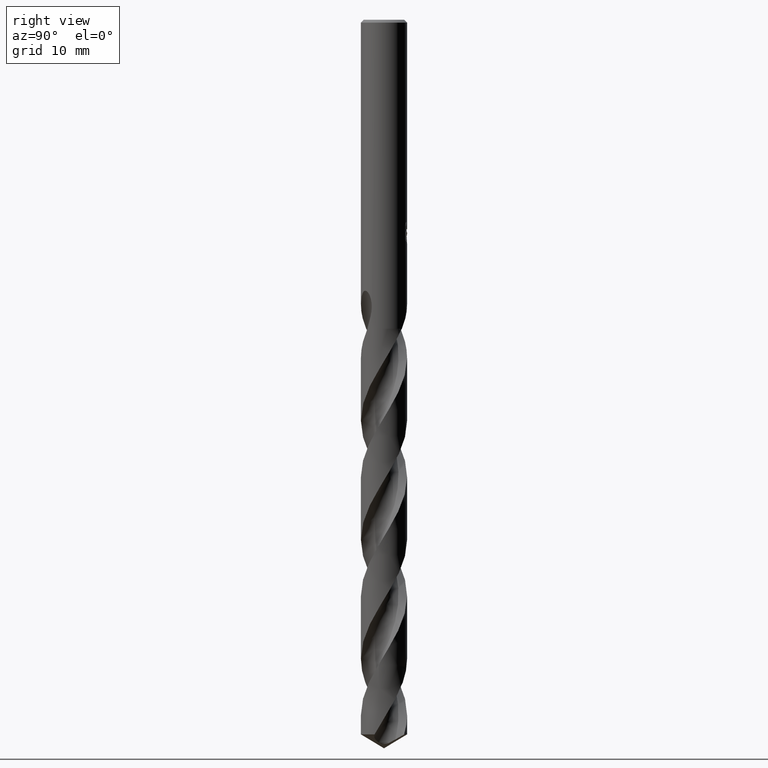
[diagram: clean part render]
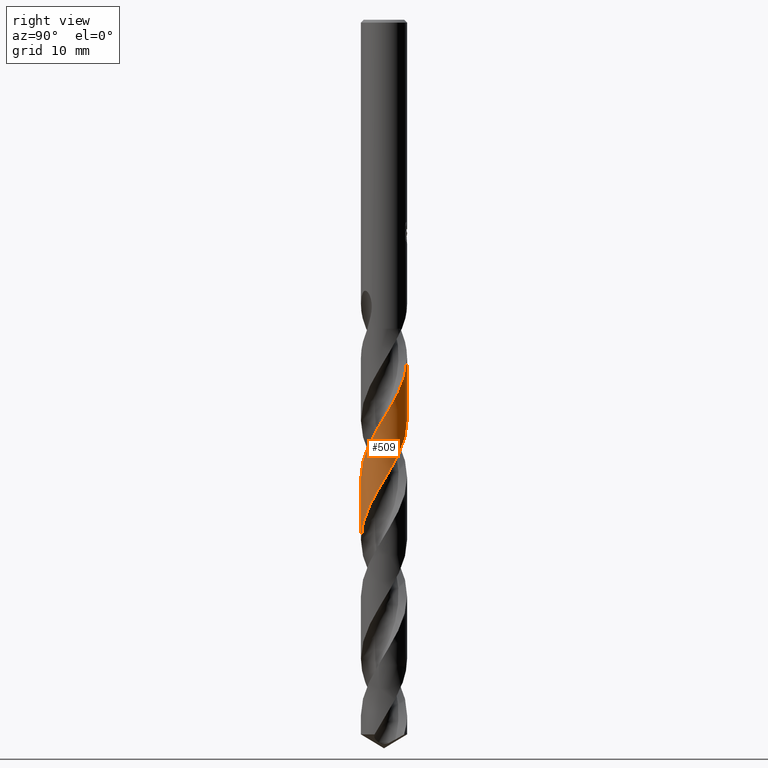
[diagram: same view with one face highlighted and labeled with its STEP entity id]
A machine part, right view. The second image highlights one B-rep face of the part: STEP entity #509.
In plain terms, the highlighted conical surface has half-angle 0 deg.
Its self-contained STEP definition (entity closure, byte-faithful):
#327=EDGE_CURVE('',#559,#593,#831,.T.);
#431=VERTEX_POINT('',#944);
#505=EDGE_CURVE('',#431,#593,#1026,.T.);
#509=ADVANCED_FACE('',(#1030),#1031,.T.);
#559=VERTEX_POINT('',#1083);
#593=VERTEX_POINT('',#1122);
#651=VERTEX_POINT('',#1185);
#693=EDGE_CURVE('',#431,#651,#1230,.T.);
#707=EDGE_CURVE('',#559,#651,#1244,.T.);
#831=LINE('',#1780,#1781);
#944=CARTESIAN_POINT('',(-2.91260331241914E-015,-3.19995201855956,-72.0930376135039));
#1026=B_SPLINE_CURVE_WITH_KNOTS('',3,(#5105,#5106,#5107,#5108,#5109,#5110,#5111,#5112,#5113,#5114,#5115,#5116,#5117,#5118,#5119,#5120,#5121,#5122,#5123,#5124,#5125,#5126,#5127,#5128,#5129,#5130,#5131,#5132,#5133,#5134,#5135,#5136,#5137,#5138,#5139,#5140,#5141,#5142,#5143,#5144,#5145,#5146,#5147,#5148,#5149,#5150,#5151,#5152,#5153,#5154,#5155,#5156,#5157,#5158,#5159,#5160,#5161,#5162,#5163,#5164,#5165,#5166,#5167,#5168,#5169,#5170,#5171,#5172,#5173,#5174,#5175,#5176,#5177,#5178,#5179,#5180,#5181,#5182,#5183,#5184,#5185,#5186,#5187,#5188,#5189,#5190,#5191,#5192,#5193,#5194,#5195,#5196,#5197,#5198,#5199,#5200,#5201,#5202,#5203,#5204,#5205,#5206,#5207,#5208,#5209,#5210,#5211,#5212,#5213,#5214,#5215,#5216,#5217,#5218,#5219,#5220,#5221,#5222,#5223,#5224,#5225,#5226,#5227,#5228,#5229,#5230,#5231,#5232,#5233,#5234,#5235,#5236,#5237,#5238,#5239,#5240,#5241,#5242,#5243,#5244,#5245,#5246,#5247,#5248,#5249,#5250,#5251,#5252,#5253,#5254,#5255,#5256,#5257,#5258,#5259,#5260),.UNSPECIFIED.,.F.,.F.,(4,2,2,2,2,2,2,2,2,2,2,2,2,2,2,2,2,2,2,2,2,2,2,2,2,2,2,2,2,2,2,2,2,2,2,2,2,2,2,2,2,2,2,2,2,2,2,2,2,2,2,2,2,2,2,2,2,2,2,2,2,2,2,2,2,2,2,2,2,2,2,2,2,2,2,2,2,4),(0.0,1.02158665361469,1.55397234841341,2.60050687630272,3.65601461697137,4.73858149125776,5.54847981453572,6.04845096128103,6.41190592570077,7.45010588805567,7.98306688293103,9.00427599153548,10.0600706424574,11.1039612214443,12.1588950030397,13.2055168937303,14.2597261742195,14.5234842018148,15.311536275016,16.3641253550588,17.4143734928957,18.466578462588,19.4904971470433,20.5416091330584,21.5375570668485,22.4791178138284,23.012354739379,23.9108937703838,24.9668214320715,26.0129843719644,27.0682022960258,28.0254426523451,29.0692143371415,30.0095182671001,31.1370575421711,31.6402103102861,32.007059955504,33.0461801399819,33.58118045698,34.6082836668661,35.6680614243557,36.7161729361432,37.775147133723,38.8258748533602,39.8841227696139,40.1488968662197,40.9414155407813,41.9980315734894,43.0523364063599,44.1085839997825,45.1362079808316,46.1913765983978,47.1948051866324,48.1469755317245,48.6710526127934,49.5720948274991,50.6319948084963,51.6823485867987,52.7415819907333,53.794404581413,54.8529754110242,55.9085777434407,56.9671289096991,57.9442784745646,58.8970703187746,60.6037469398591,61.2335798558099,62.1281818140837,62.5741382352881,64.5223596962156,65.2618271848891,65.5905814678174,65.9308106373669,66.1854070846266,66.4568762147271,66.88146465761,68.1205324374473,69.9710411724681),.UNSPECIFIED.);
#1030=FACE_OUTER_BOUND('',#5265,.T.);
#1031=CONICAL_SURFACE('',#5266,3.19995,1.77813036857339E-006);
#1083=CARTESIAN_POINT('',(8.5023499260595E-013,3.19990720522995,-46.8905381779976));
#1122=CARTESIAN_POINT('',(3.9328094472779E-014,3.19992267071849,-55.5881504597108));
#1185=CARTESIAN_POINT('',(2.19563914921632E-014,-3.19993655201892,-63.3948336357782));
#1230=LINE('',#7078,#7079);
#1244=B_SPLINE_CURVE_WITH_KNOTS('',3,(#7254,#7255,#7256,#7257,#7258,#7259,#7260,#7261,#7262,#7263,#7264,#7265,#7266,#7267,#7268,#7269,#7270,#7271,#7272,#7273,#7274,#7275,#7276,#7277,#7278,#7279,#7280,#7281,#7282,#7283,#7284,#7285,#7286,#7287,#7288,#7289,#7290,#7291,#7292,#7293,#7294,#7295,#7296,#7297,#7298,#7299,#7300,#7301,#7302,#7303,#7304,#7305,#7306,#7307,#7308,#7309,#7310,#7311,#7312,#7313,#7314,#7315,#7316,#7317,#7318,#7319,#7320,#7321,#7322,#7323,#7324,#7325,#7326,#7327,#7328,#7329,#7330,#7331,#7332,#7333,#7334,#7335,#7336,#7337,#7338,#7339,#7340,#7341,#7342,#7343,#7344,#7345,#7346,#7347,#7348,#7349,#7350,#7351,#7352,#7353,#7354,#7355,#7356,#7357,#7358,#7359,#7360,#7361,#7362,#7363,#7364,#7365,#7366,#7367,#7368,#7369,#7370,#7371,#7372,#7373,#7374,#7375,#7376,#7377,#7378,#7379,#7380,#7381,#7382,#7383,#7384,#7385,#7386,#7387,#7388,#7389,#7390,#7391,#7392,#7393,#7394,#7395,#7396,#7397,#7398,#7399,#7400,#7401,#7402,#7403,#7404,#7405,#7406,#7407,#7408,#7409,#7410,#7411,#7412,#7413,#7414,#7415,#7416,#7417,#7418,#7419,#7420,#7421,#7422,#7423,#7424,#7425,#7426,#7427,#7428,#7429,#7430,#7431,#7432,#7433,#7434,#7435),.UNSPECIFIED.,.F.,.F.,(4,2,2,2,2,2,2,2,2,2,2,2,2,2,2,2,2,2,2,2,2,2,2,2,2,2,2,2,2,2,2,2,2,2,2,2,2,2,2,2,2,2,2,2,2,2,2,2,2,2,2,2,2,2,2,2,2,2,2,2,2,2,2,2,2,2,2,2,2,2,2,2,2,2,2,2,2,2,2,2,2,2,2,2,2,2,2,2,2,2,4),(0.0,0.162508176744681,0.262962248416438,0.278276469323276,0.287289466920164,0.292621480535898,0.296837173648333,0.300380379750316,0.303383865669479,0.305947729503301,0.308149081224268,0.310048414192678,0.696918608611974,0.78779981944965,0.837480298149021,0.879145641300166,0.928477887189043,1.01780122871589,1.13766686543505,1.62962187724731,1.93806701981142,2.56079531830886,4.15599006233597,4.19252409294814,5.35347810074523,5.87026171575325,6.45284894057769,7.46448625552191,7.98071630226949,8.54059894214104,9.5350068543981,10.0948138088861,10.6658316675442,11.6478249541244,12.2068368708415,12.7414318755416,13.7261706492854,14.2850138360151,14.8162976749302,15.8106364236795,16.3691089958169,16.8909318889398,17.8898480607402,18.4481057168711,18.9651681384164,19.9716492084033,21.0837199441439,22.2799810874673,23.0554393339788,24.1016009484798,25.2141367341614,26.3954108050032,27.2013717364557,28.2549280231771,29.3658853288817,30.5727389850749,31.3258673815321,32.3651440061767,32.9231251013335,33.4430036354592,34.4456853313956,35.5574689486289,36.7389238414698,37.5430754385049,38.5996715785268,39.7095538346217,40.9243610645761,41.6610006979406,42.6951658263414,43.2530005256307,43.7765658404705,44.7704625843041,45.3281268902806,45.8479937686294,46.8511414741198,47.9621551697774,49.150622529171,49.9382123168745,50.987143614478,52.0975309353969,53.2871424706502,54.0706541042447,55.1157819101185,56.226526998923,57.416417579003,58.2033918689481,59.2466805763635,60.4370707265046,61.3262947411645,62.6707243668066,64.0145304689769),.UNSPECIFIED.);
#1780=CARTESIAN_POINT('',(-3.91693754514266E-016,3.19995,-70.9578230095559));
#1781=VECTOR('',#8818,1.0);
#5105=CARTESIAN_POINT('',(2.91667535114104,-1.31643643828571,-99.0772460191119));
#5106=CARTESIAN_POINT('',(2.98922704131377,-1.15569082401131,-98.7859437346212));
#5107=CARTESIAN_POINT('',(3.04855483493951,-0.988812961967616,-98.4963089093706));
#5108=CARTESIAN_POINT('',(3.11745223132555,-0.72802449591417,-98.0542165220331));
#5109=CARTESIAN_POINT('',(3.13716530359107,-0.637735069751219,-97.902963461199));
#5110=CARTESIAN_POINT('',(3.18395318351043,-0.367923340019046,-97.4536418267543));
#5111=CARTESIAN_POINT('',(3.19969355465878,-0.186847435492377,-97.1547598113868));
#5112=CARTESIAN_POINT('',(3.20029244712111,0.177876663463347,-96.5565825585273));
#5113=CARTESIAN_POINT('',(3.18486935931106,0.360663586068769,-96.2577695289558));
#5114=CARTESIAN_POINT('',(3.12217720733975,0.726094635875155,-95.6492941359391));
#5115=CARTESIAN_POINT('',(3.07425249451457,0.907850582007919,-95.3398832103378));
#5116=CARTESIAN_POINT('',(2.96299487775976,1.2166961680246,-94.8013000936051));
#5117=CARTESIAN_POINT('',(2.90671195483287,1.34563831223136,-94.5715772331708));
#5118=CARTESIAN_POINT('',(2.80221523396485,1.54760063555839,-94.1989384506214));
#5119=CARTESIAN_POINT('',(2.75926324527817,1.62293009432958,-94.0568198833268));
#5120=CARTESIAN_POINT('',(2.68001898424042,1.74968511275061,-93.8109405457506));
#5121=CARTESIAN_POINT('',(2.64515145563124,1.80195942242564,-93.7072753937988));
#5122=CARTESIAN_POINT('',(2.50487449821263,1.9994318908679,-93.308446224072));
#5123=CARTESIAN_POINT('',(2.38868019861751,2.13695188715435,-93.0146351155079));
#5124=CARTESIAN_POINT('',(2.19586113971581,2.32952030215026,-92.5682839594626));
#5125=CARTESIAN_POINT('',(2.12770964325873,2.39192220565961,-92.4170465268318));
#5126=CARTESIAN_POINT('',(1.92157123643604,2.56490723753893,-91.9752447740808));
#5127=CARTESIAN_POINT('',(1.77697463366534,2.66713233527024,-91.6837328867615));
#5128=CARTESIAN_POINT('',(1.46687322931956,2.84985388648757,-91.0932659441781));
#5129=CARTESIAN_POINT('',(1.30160133911013,2.92902562118013,-90.7947466073643));
#5130=CARTESIAN_POINT('',(0.961323325773203,3.05752477185681,-90.197840172946));
#5131=CARTESIAN_POINT('',(0.787174859525202,3.10692152265177,-89.8998432962284));
#5132=CARTESIAN_POINT('',(0.430202792670777,3.17619585464251,-89.3031730977345));
#5133=CARTESIAN_POINT('',(0.248138073843512,3.19557753827756,-89.0049029147983));
#5134=CARTESIAN_POINT('',(-0.115875229206006,3.20301891129282,-88.4075394275976));
#5135=CARTESIAN_POINT('',(-0.296969334866258,3.19132318359683,-88.1087928291273));
#5136=CARTESIAN_POINT('',(-0.656773989412339,3.13717288758525,-87.5116320916579));
#5137=CARTESIAN_POINT('',(-0.834682370730266,3.09459613634769,-87.2136115094545));
#5138=CARTESIAN_POINT('',(-1.05138506583766,3.02267069175028,-86.8390774318769));
#5139=CARTESIAN_POINT('',(-1.09440463544387,3.00736090645691,-86.7641289073539));
#5140=CARTESIAN_POINT('',(-1.26445777457256,2.9427167778164,-86.4650520689913));
#5141=CARTESIAN_POINT('',(-1.38875776373846,2.88615015696883,-86.2400329143019));
#5142=CARTESIAN_POINT('',(-1.67007889969015,2.73568444934645,-85.7163592228035));
#5143=CARTESIAN_POINT('',(-1.82333232153383,2.63602386394133,-85.4185309833209));
#5144=CARTESIAN_POINT('',(-2.11093608219062,2.41183676569968,-84.820472660759));
#5145=CARTESIAN_POINT('',(-2.24459233776143,2.2879557267047,-84.5205227494712));
#5146=CARTESIAN_POINT('',(-2.48968606928529,2.01854306567119,-83.9225676879245));
#5147=CARTESIAN_POINT('',(-2.60064077883715,1.87343709690937,-83.6249538011568));
#5148=CARTESIAN_POINT('',(-2.79405580383861,1.56989791553516,-83.0347547195869));
#5149=CARTESIAN_POINT('',(-2.87670484232269,1.41272450663284,-82.7424807772617));
#5150=CARTESIAN_POINT('',(-3.01694956067093,1.08209070648495,-82.1526030255702));
#5151=CARTESIAN_POINT('',(-3.07361892543367,0.908763277671429,-81.8554438162161));
#5152=CARTESIAN_POINT('',(-3.15470424786709,0.563406775754941,-81.2738963763847));
#5153=CARTESIAN_POINT('',(-3.18044071792173,0.392704737341281,-80.9898871266705));
#5154=CARTESIAN_POINT('',(-3.20356452672034,0.0586593317655555,-80.4395395813777));
#5155=CARTESIAN_POINT('',(-3.20241643099192,-0.104468250667895,-80.1732941386242));
#5156=CARTESIAN_POINT('',(-3.18110102075764,-0.359037355866445,-79.7548005505506));
#5157=CARTESIAN_POINT('',(-3.16942123688746,-0.450599647967159,-79.6036453737453));
#5158=CARTESIAN_POINT('',(-3.12755369377225,-0.694475347358084,-79.1970160713484));
#5159=CARTESIAN_POINT('',(-3.09015469266974,-0.845532520007167,-78.9407419008355));
#5160=CARTESIAN_POINT('',(-2.98508113918226,-1.16725737046965,-78.3854464257797));
#5161=CARTESIAN_POINT('',(-2.91352873594237,-1.33586480775229,-78.0870724813737));
#5162=CARTESIAN_POINT('',(-2.74321600012052,-1.65750666726705,-77.4898875333311));
#5163=CARTESIAN_POINT('',(-2.64511004879963,-1.80995725474282,-77.191448412104));
#5164=CARTESIAN_POINT('',(-2.4230337629572,-2.09809992689424,-76.5944605840451));
#5165=CARTESIAN_POINT('',(-2.29933230303769,-2.23297815905686,-76.2963163755533));
#5166=CARTESIAN_POINT('',(-2.04272772419698,-2.46869734016755,-75.7247073473795));
#5167=CARTESIAN_POINT('',(-1.91231423949888,-2.57102832485064,-75.451706216955));
#5168=CARTESIAN_POINT('',(-1.62436671748625,-2.76292174556198,-74.8833801916902));
#5169=CARTESIAN_POINT('',(-1.46588473497252,-2.85018677194176,-74.5885362098601));
#5170=CARTESIAN_POINT('',(-1.15201326309424,-2.98983064925337,-74.0253888407649));
#5171=CARTESIAN_POINT('',(-0.998636343202989,-3.04446346736214,-73.7575678424704));
#5172=CARTESIAN_POINT('',(-0.654435675066245,-3.13835390010895,-73.1708553815895));
#5173=CARTESIAN_POINT('',(-0.462277204911153,-3.17238471506618,-72.8529584858023));
#5174=CARTESIAN_POINT('',(-0.181256775728763,-3.19599966990999,-72.3908016687856));
#5175=CARTESIAN_POINT('',(-0.0944029146532779,-3.19973650569978,-72.2483185162892));
#5176=CARTESIAN_POINT('',(0.0556497150674132,-3.20009349107954,-72.0015024258843));
#5177=CARTESIAN_POINT('',(0.118808256441584,-3.19836890867066,-71.8972624733146));
#5178=CARTESIAN_POINT('',(0.360456604826635,-3.18461259329474,-71.4987229691149));
#5179=CARTESIAN_POINT('',(0.538192693112234,-3.15947268443595,-71.2057625854319));
#5180=CARTESIAN_POINT('',(0.803335137401258,-3.09885068582705,-70.7602710345315));
#5181=CARTESIAN_POINT('',(0.892439178977153,-3.07436899388995,-70.6090330151859));
#5182=CARTESIAN_POINT('',(1.14893678212004,-2.99182286343044,-70.1666675097049));
#5183=CARTESIAN_POINT('',(1.31274544986428,-2.92366288821588,-69.8745889431585));
#5184=CARTESIAN_POINT('',(1.63272284241483,-2.75814189595147,-69.2835768234373));
#5185=CARTESIAN_POINT('',(1.78767435332863,-2.66032432209015,-68.9850736638732));
#5186=CARTESIAN_POINT('',(2.07752993547655,-2.44053996587942,-68.3881261381579));
#5187=CARTESIAN_POINT('',(2.21202830136617,-2.31933204876215,-68.0900713368119));
#5188=CARTESIAN_POINT('',(2.46060742164517,-2.05388813838786,-67.4933435348771));
#5189=CARTESIAN_POINT('',(2.57387035412656,-1.91003427865466,-67.195075904707));
#5190=CARTESIAN_POINT('',(2.77382208129757,-1.60574767952891,-66.5976918247443));
#5191=CARTESIAN_POINT('',(2.86025977134636,-1.44616885352649,-66.2989200767582));
#5192=CARTESIAN_POINT('',(3.00580888151821,-1.1126853024051,-65.7017384373065));
#5193=CARTESIAN_POINT('',(3.06439388514552,-0.939393447857586,-65.4037214242577));
#5194=CARTESIAN_POINT('',(3.11876480813301,-0.717639548915154,-65.0291902419337));
#5195=CARTESIAN_POINT('',(3.12868543021829,-0.673067895151101,-64.9542410358336));
#5196=CARTESIAN_POINT('',(3.16445579288594,-0.494443033665004,-64.6547561964552));
#5197=CARTESIAN_POINT('',(3.18269585750011,-0.358854327524868,-64.4293270912068));
#5198=CARTESIAN_POINT('',(3.20487950213653,-0.0403588353274762,-63.9052540568799));
#5199=CARTESIAN_POINT('',(3.2019726173359,0.14241774015297,-63.60743307597));
#5200=CARTESIAN_POINT('',(3.16504964848711,0.505192821511985,-63.0093789779218));
#5201=CARTESIAN_POINT('',(3.13120997618079,0.684260230147785,-62.7094263187821));
#5202=CARTESIAN_POINT('',(3.03338000340517,1.0350889011594,-62.1114706553074));
#5203=CARTESIAN_POINT('',(2.96949419906747,1.20621467977228,-61.8138593892835));
#5204=CARTESIAN_POINT('',(2.81530080197254,1.53138674908748,-61.2237311664315));
#5205=CARTESIAN_POINT('',(2.72616621868802,1.68492610425362,-60.9315263222144));
#5206=CARTESIAN_POINT('',(2.52076750612172,1.97949189017088,-60.3417142360895));
#5207=CARTESIAN_POINT('',(2.40411751709049,2.11965918851587,-60.0445524868022));
#5208=CARTESIAN_POINT('',(2.15432287590549,2.37243508355352,-59.4619720300999));
#5209=CARTESIAN_POINT('',(2.02293467968123,2.48538245488568,-59.1769251863973));
#5210=CARTESIAN_POINT('',(1.75073135767642,2.68353364770424,-58.6235648607816));
#5211=CARTESIAN_POINT('',(1.61084236321744,2.76978646016992,-58.3553662509504));
#5212=CARTESIAN_POINT('',(1.38436936964429,2.8863871538775,-57.9380573455807));
#5213=CARTESIAN_POINT('',(1.30234221254963,2.92430768929025,-57.7900562363386));
#5214=CARTESIAN_POINT('',(1.07549119168448,3.01776530978213,-57.386861349559));
#5215=CARTESIAN_POINT('',(0.927844584958969,3.06639613733314,-57.1308513699412));
#5216=CARTESIAN_POINT('',(0.599708736206988,3.14853827513445,-56.5758418172706));
#5217=CARTESIAN_POINT('',(0.418893027220152,3.17764998444053,-56.2774888785458));
#5218=CARTESIAN_POINT('',(0.0559245951414947,3.20455881161748,-55.680278159934));
#5219=CARTESIAN_POINT('',(-0.125382731740945,3.2025915761177,-55.3817901990339));
#5220=CARTESIAN_POINT('',(-0.487525557663574,3.16783566125864,-54.7847639025139));
#5221=CARTESIAN_POINT('',(-0.667532395073355,3.13484762544618,-54.486630433727));
#5222=CARTESIAN_POINT('',(-1.0189196060541,3.0387929150769,-53.8890294947342));
#5223=CARTESIAN_POINT('',(-1.18950336064934,2.97615574541688,-53.589881479311));
#5224=CARTESIAN_POINT('',(-1.51928892050098,2.82215100721999,-52.9924651781341));
#5225=CARTESIAN_POINT('',(-1.67774944338408,2.7309261722354,-52.6945836421531));
#5226=CARTESIAN_POINT('',(-1.97704078697331,2.52268056085184,-52.096578856032));
#5227=CARTESIAN_POINT('',(-2.11716249043923,2.40627585481406,-51.796754999747));
#5228=CARTESIAN_POINT('',(-2.37654100402287,2.15052821881807,-51.1987469371339));
#5229=CARTESIAN_POINT('',(-2.4952537637309,2.01158153937446,-50.9009616702896));
#5230=CARTESIAN_POINT('',(-2.69959143728746,1.72627535904324,-50.3253594197339));
#5231=CARTESIAN_POINT('',(-2.78657617951634,1.58199371506331,-50.0479075830946));
#5232=CARTESIAN_POINT('',(-2.93514446968166,1.28500579106599,-49.5022863843453));
#5233=CARTESIAN_POINT('',(-2.99719529508094,1.13280850663949,-49.23417412125));
#5234=CARTESIAN_POINT('',(-3.13713637404652,0.696014560665837,-48.4830787665624));
#5235=CARTESIAN_POINT('',(-3.18777388643173,0.404891089496288,-48.000207023792));
#5236=CARTESIAN_POINT('',(-3.20174542604361,0.0026720804214569,-47.3401021291484));
#5237=CARTESIAN_POINT('',(-3.19999516765238,-0.10585252204413,-47.1625192891103));
#5238=CARTESIAN_POINT('',(-3.18243137309106,-0.367790332991994,-46.7319624576463));
#5239=CARTESIAN_POINT('',(-3.16103827343551,-0.520320375297882,-46.4781399238339));
#5240=CARTESIAN_POINT('',(-3.11293044722813,-0.744915837463824,-46.0999648732467));
#5241=CARTESIAN_POINT('',(-3.09422229765409,-0.819190267263655,-45.974273431674));
#5242=CARTESIAN_POINT('',(-2.97926643045115,-1.21480199701297,-45.2999393944029));
#5243=CARTESIAN_POINT('',(-2.84658165767466,-1.48416051485525,-44.8245914748398));
#5244=CARTESIAN_POINT('',(-2.65749778893908,-1.78511735732993,-44.2272497364632));
#5245=CARTESIAN_POINT('',(-2.60288628674879,-1.8636269445124,-44.0626152284353));
#5246=CARTESIAN_POINT('',(-2.52105125697595,-1.97114203506979,-43.8214307674668));
#5247=CARTESIAN_POINT('',(-2.50258474822024,-1.99414697014413,-43.7674828259138));
#5248=CARTESIAN_POINT('',(-2.48538748095646,-2.01554310070369,-43.7178734847301));
#5249=CARTESIAN_POINT('',(-2.47642579477572,-2.02654713831548,-43.6927832662145));
#5250=CARTESIAN_POINT('',(-2.46035821806893,-2.0460017861821,-43.6491404890971));
#5251=CARTESIAN_POINT('',(-2.45335603881815,-2.0543942093093,-43.6305403148069));
#5252=CARTESIAN_POINT('',(-2.43861919881866,-2.07186972286409,-43.5922628087691));
#5253=CARTESIAN_POINT('',(-2.43086964101689,-2.08095829607402,-43.5726032992256));
#5254=CARTESIAN_POINT('',(-2.41061393079834,-2.10443961550594,-43.5224214779085));
#5255=CARTESIAN_POINT('',(-2.39789933886365,-2.11892232111831,-43.4920488844322));
#5256=CARTESIAN_POINT('',(-2.34659790286363,-2.17626474521457,-43.3739018387122));
#5257=CARTESIAN_POINT('',(-2.30535238444399,-2.22006800669075,-43.2881993864767));
#5258=CARTESIAN_POINT('',(-2.19393144265466,-2.33129130020119,-43.0790390254779));
#5259=CARTESIAN_POINT('',(-2.1203451748707,-2.39887948161022,-42.9593704922546));
#5260=CARTESIAN_POINT('',(-2.0390575965233,-2.46609087118845,-42.8434));
#5265=EDGE_LOOP('',(#9074,#9075,#9076,#9077));
#5266=AXIS2_PLACEMENT_3D('',#9078,#9079,#9080);
#7078=CARTESIAN_POINT('',(3.92042065868517E-016,-3.19995,-70.9578230095559));
#7079=VECTOR('',#9274,1.0);
#7254=CARTESIAN_POINT('',(-2.22417678121337,2.30052118286481,-42.8434));
#7255=CARTESIAN_POINT('',(-2.20492247869231,2.31913663436974,-42.8904856650822));
#7256=CARTESIAN_POINT('',(-2.18536238970288,2.33758095188979,-42.9376410934236));
#7257=CARTESIAN_POINT('',(-2.15312252778053,2.36721465436111,-43.0138718119408));
#7258=CARTESIAN_POINT('',(-2.14068763657367,2.37846656560394,-43.0429302163507));
#7259=CARTESIAN_POINT('',(-2.12617295683274,2.39139245762941,-43.076410782111));
#7260=CARTESIAN_POINT('',(-2.12424962690309,2.3931011093673,-43.080838562254));
#7261=CARTESIAN_POINT('',(-2.12118887684758,2.39581361826912,-43.0878708676263));
#7262=CARTESIAN_POINT('',(-2.12005374204703,2.39681816351251,-43.090475883485));
#7263=CARTESIAN_POINT('',(-2.11824517693418,2.39841637355106,-43.0946214811678));
#7264=CARTESIAN_POINT('',(-2.11757252771106,2.39901028316229,-43.0961622596283));
#7265=CARTESIAN_POINT('',(-2.11636731153206,2.40007351572847,-43.0989210204539));
#7266=CARTESIAN_POINT('',(-2.11583490362597,2.40054288715475,-43.1001390408879));
#7267=CARTESIAN_POINT('',(-2.11485453836109,2.40140659855692,-43.1023806421628));
#7268=CARTESIAN_POINT('',(-2.11440665925473,2.40180096202787,-43.1034042413385));
#7269=CARTESIAN_POINT('',(-2.11357878419908,2.40252950577961,-43.1052954183368));
#7270=CARTESIAN_POINT('',(-2.11319884120213,2.40286370206772,-43.1061630089929));
#7271=CARTESIAN_POINT('',(-2.11249432220816,2.40348309763607,-43.1077711268539));
#7272=CARTESIAN_POINT('',(-2.11216978270796,2.40376830820178,-43.1085116635545));
#7273=CARTESIAN_POINT('',(-2.11156641176045,2.40429834376253,-43.1098879760798));
#7274=CARTESIAN_POINT('',(-2.11128760611326,2.404543176709,-43.1105237586253));
#7275=CARTESIAN_POINT('',(-2.11076811335837,2.40499920879376,-43.1117080559392));
#7276=CARTESIAN_POINT('',(-2.11052744492639,2.40521041348972,-43.112256575187));
#7277=CARTESIAN_POINT('',(-2.06125478363845,2.44843779687893,-43.2245282355877));
#7278=CARTESIAN_POINT('',(-2.01123647567278,2.4897454301167,-43.3327240929561));
#7279=CARTESIAN_POINT('',(-1.94543161545554,2.54065217655821,-43.4683944770624));
#7280=CARTESIAN_POINT('',(-1.93281054451491,2.55026754352542,-43.4941395106639));
#7281=CARTESIAN_POINT('',(-1.91310437616538,2.56504880574397,-43.5339525701414));
#7282=CARTESIAN_POINT('',(-1.90610924605079,2.57025132327107,-43.5480115563323));
#7283=CARTESIAN_POINT('',(-1.8931881291983,2.57977919776274,-43.5738553739912));
#7284=CARTESIAN_POINT('',(-1.88727423237275,2.58410880575567,-43.5856361623105));
#7285=CARTESIAN_POINT('',(-1.87431186313388,2.59353028051463,-43.6113611770169));
#7286=CARTESIAN_POINT('',(-1.86725810829412,2.59861345021748,-43.6252981486055));
#7287=CARTESIAN_POINT('',(-1.84735486959083,2.61283327295638,-43.6644670394327));
#7288=CARTESIAN_POINT('',(-1.83445646744601,2.62190545944175,-43.689668720421));
#7289=CARTESIAN_POINT('',(-1.80406851901935,2.64294450763743,-43.7487120843181));
#7290=CARTESIAN_POINT('',(-1.78628733208988,2.65499893565336,-43.7830277724477));
#7291=CARTESIAN_POINT('',(-1.69395920928168,2.71621228241805,-43.9609207545345));
#7292=CARTESIAN_POINT('',(-1.61818626262575,2.76198487907235,-44.1051032629052));
#7293=CARTESIAN_POINT('',(-1.49296639383993,2.83080560322056,-44.3392623068452));
#7294=CARTESIAN_POINT('',(-1.44410182795978,2.8560396808566,-44.4296682910517));
#7295=CARTESIAN_POINT('',(-1.29491850385589,2.92828535577572,-44.7024261933031));
#7296=CARTESIAN_POINT('',(-1.19264758738166,2.97141046566312,-44.8849447078746));
#7297=CARTESIAN_POINT('',(-0.821116010684257,3.10578561669692,-45.5346781559008));
#7298=CARTESIAN_POINT('',(-0.542240223193256,3.16641139022429,-45.9973012629393));
#7299=CARTESIAN_POINT('',(-0.252448953639457,3.18993938768378,-46.4751400628859));
#7300=CARTESIAN_POINT('',(-0.245959289748394,3.1904463491132,-46.485839434972));
#7301=CARTESIAN_POINT('',(-0.0332226231874743,3.20641215284576,-46.8364977242038));
#7302=CARTESIAN_POINT('',(0.174209181895642,3.20186883351523,-47.1758205845537));
#7303=CARTESIAN_POINT('',(0.471426058102529,3.16633441477102,-47.6668487878313));
#7304=CARTESIAN_POINT('',(0.562447956830603,3.15143865037613,-47.8180316035708));
#7305=CARTESIAN_POINT('',(0.754416774823708,3.11144240151412,-48.1398200380933));
#7306=CARTESIAN_POINT('',(0.855009506573912,3.0853139841824,-48.3102101524854));
#7307=CARTESIAN_POINT('',(1.1262205254448,3.00059389873023,-48.7770084834329));
#7308=CARTESIAN_POINT('',(1.2935245323283,2.93236620791961,-49.0729609148463));
#7309=CARTESIAN_POINT('',(1.53622870984458,2.80854275103936,-49.5202657829413));
#7310=CARTESIAN_POINT('',(1.61641007658108,2.76317572560179,-49.6712895127099));
#7311=CARTESIAN_POINT('',(1.7792825411297,2.6614985082217,-49.9862735018089));
#7312=CARTESIAN_POINT('',(1.86146696998523,2.60467882746422,-50.1499515355434));
#7313=CARTESIAN_POINT('',(2.08182919699441,2.43657126692377,-50.605049813529));
#7314=CARTESIAN_POINT('',(2.2136457111544,2.31747242784376,-50.8960220113178));
#7315=CARTESIAN_POINT('',(2.40318860071316,2.1152091644492,-51.3511073947031));
#7316=CARTESIAN_POINT('',(2.46802717502774,2.03918558657148,-51.5148924128932));
#7317=CARTESIAN_POINT('',(2.59163153258661,1.87970459844738,-51.8459491434265));
#7318=CARTESIAN_POINT('',(2.65013977136393,1.7962713539388,-52.0129405484792));
#7319=CARTESIAN_POINT('',(2.79814220936214,1.56221963020874,-52.4677531947938));
#7320=CARTESIAN_POINT('',(2.87944148724361,1.40675998978387,-52.7550966167886));
#7321=CARTESIAN_POINT('',(2.98642729458889,1.15354821593427,-53.2063569517063));
#7322=CARTESIAN_POINT('',(3.0209304134804,1.05991090357869,-53.3699207333396));
#7323=CARTESIAN_POINT('',(3.07977296624695,0.873832608165677,-53.6901147494271));
#7324=CARTESIAN_POINT('',(3.10444351751832,0.781667885804174,-53.8464970623021));
#7325=CARTESIAN_POINT('',(3.16274735153957,0.517067661530755,-54.2914973627867));
#7326=CARTESIAN_POINT('',(3.18636253023986,0.342711401839029,-54.5796723134983));
#7327=CARTESIAN_POINT('',(3.20075840552754,0.0677079730660085,-55.0317371454371));
#7328=CARTESIAN_POINT('',(3.20131545942607,-0.0320643084880205,-55.1952694207633));
#7329=CARTESIAN_POINT('',(3.19330714735528,-0.22646167951381,-55.5144807653158));
#7330=CARTESIAN_POINT('',(3.18519703446,-0.320943281932041,-55.6699175058893));
#7331=CARTESIAN_POINT('',(3.14991763904092,-0.590745815210402,-56.1168101025726));
#7332=CARTESIAN_POINT('',(3.11233933177279,-0.764418289522086,-56.4078130480874));
#7333=CARTESIAN_POINT('',(3.03146057410716,-1.02941532635924,-56.8626273408722));
#7334=CARTESIAN_POINT('',(2.99793081833994,-1.12332968925753,-57.0260671371391));
#7335=CARTESIAN_POINT('',(2.92468161054369,-1.30170595196567,-57.3424341559934));
#7336=CARTESIAN_POINT('',(2.88556968845265,-1.38624597319644,-57.4951290281554));
#7337=CARTESIAN_POINT('',(2.76104949895654,-1.62723225495572,-57.9406413232365));
#7338=CARTESIAN_POINT('',(2.66615793709535,-1.7784577259701,-58.2330095809421));
#7339=CARTESIAN_POINT('',(2.49934137689019,-2.00068919304579,-58.6891503932699));
#7340=CARTESIAN_POINT('',(2.43583746452426,-2.07753937958334,-58.8525443607501));
#7341=CARTESIAN_POINT('',(2.3067812825836,-2.2196454729152,-59.1674890736985));
#7342=CARTESIAN_POINT('',(2.24182450587306,-2.28523045654397,-59.3188135777968));
#7343=CARTESIAN_POINT('',(2.04240913993278,-2.46988940007719,-59.765197094223));
#7344=CARTESIAN_POINT('',(1.90060423698409,-2.58060552891448,-60.0598015761036));
#7345=CARTESIAN_POINT('',(1.58407824041218,-2.7874091144803,-60.6804502867094));
#7346=CARTESIAN_POINT('',(1.4082334091676,-2.88024339111018,-61.005062049148));
#7347=CARTESIAN_POINT('',(1.02781187788326,-3.0378805759287,-61.6814518124063));
#7348=CARTESIAN_POINT('',(0.8229051505763,-3.09967980900817,-62.031338729262));
#7349=CARTESIAN_POINT('',(0.477428144819275,-3.16714584635313,-62.6089668752885));
#7350=CARTESIAN_POINT('',(0.340020930223325,-3.18482638413949,-62.8356776725472));
#7351=CARTESIAN_POINT('',(0.0156297134110276,-3.20533857586045,-63.3694756607291));
#7352=CARTESIAN_POINT('',(-0.171386016230297,-3.20079632773166,-63.6757463160614));
#7353=CARTESIAN_POINT('',(-0.554316232518354,-3.15781197540751,-64.3082763020261));
#7354=CARTESIAN_POINT('',(-0.749126252921838,-3.11734241476237,-64.6330787545351));
#7355=CARTESIAN_POINT('',(-1.1403955861494,-2.99725528748104,-65.3053370200508));
#7356=CARTESIAN_POINT('',(-1.33536882011072,-2.91563018121704,-65.6509358743255));
#7357=CARTESIAN_POINT('',(-1.64756182589048,-2.74697588644817,-66.2332240930143));
#7358=CARTESIAN_POINT('',(-1.76937833733832,-2.67013447165682,-66.4688675090786));
#7359=CARTESIAN_POINT('',(-2.03750347139988,-2.47458432408139,-67.0138780270002));
#7360=CARTESIAN_POINT('',(-2.17939237302913,-2.35058917896638,-67.3223615127587));
#7361=CARTESIAN_POINT('',(-2.44687289814735,-2.07166631258838,-67.9567149280772));
#7362=CARTESIAN_POINT('',(-2.57051514851526,-1.91609211378458,-68.2811303054358));
#7363=CARTESIAN_POINT('',(-2.79674173676944,-1.5698023247758,-68.9605586866206));
#7364=CARTESIAN_POINT('',(-2.89607872983281,-1.3779865164941,-69.3136540827464));
#7365=CARTESIAN_POINT('',(-3.0248957813347,-1.05250429122492,-69.8880593963383));
#7366=CARTESIAN_POINT('',(-3.06644372249668,-0.924481692505176,-70.1083451301717));
#7367=CARTESIAN_POINT('',(-3.14585910469482,-0.614542644521005,-70.6337814629182));
#7368=CARTESIAN_POINT('',(-3.17620039994403,-0.431128864524582,-70.9381626070604));
#7369=CARTESIAN_POINT('',(-3.19813649539081,-0.14675127253847,-71.4063637983029));
#7370=CARTESIAN_POINT('',(-3.20115691481012,-0.0470850605250594,-71.5697882951024));
#7371=CARTESIAN_POINT('',(-3.1979936670678,0.145437576150494,-71.8856909299659));
#7372=CARTESIAN_POINT('',(-3.19242719493511,0.238146293234657,-72.0379390117377));
#7373=CARTESIAN_POINT('',(-3.16435990720881,0.508489622175672,-72.4843360370819));
#7374=CARTESIAN_POINT('',(-3.13096586874835,0.684704287695078,-72.7780309571545));
#7375=CARTESIAN_POINT('',(-3.02980494496618,1.04852957130934,-73.3979031905607));
#7376=CARTESIAN_POINT('',(-2.95894053993007,1.23441216215002,-73.7226453314842));
#7377=CARTESIAN_POINT('',(-2.77823552363552,1.60175191522833,-74.3950675645226));
#7378=CARTESIAN_POINT('',(-2.66661833300243,1.78140860173287,-74.7408883894812));
#7379=CARTESIAN_POINT('',(-2.45059066395292,2.06275850809126,-75.3229859423854));
#7380=CARTESIAN_POINT('',(-2.35555688252451,2.17064517389673,-75.5582183873143));
#7381=CARTESIAN_POINT('',(-2.11968644737518,2.4046330376099,-76.1038578402075));
#7382=CARTESIAN_POINT('',(-1.974229621053,2.52542703218751,-76.4133779484122));
#7383=CARTESIAN_POINT('',(-1.65583655084571,2.74540715133663,-77.0486168255986));
#7384=CARTESIAN_POINT('',(-1.48265021479045,2.84266982071431,-77.3728812072476));
#7385=CARTESIAN_POINT('',(-1.10347049956421,3.01150460078221,-78.0546604391069));
#7386=CARTESIAN_POINT('',(-0.896782139713882,3.07939384325005,-78.4102371677769));
#7387=CARTESIAN_POINT('',(-0.556159735040405,3.15401073343847,-78.9824179579968));
#7388=CARTESIAN_POINT('',(-0.426007521224497,3.17420845062607,-79.1979998259614));
#7389=CARTESIAN_POINT('',(-0.111098953417624,3.20336530617644,-79.7173569401457));
#7390=CARTESIAN_POINT('',(0.0739790039092789,3.20444176196545,-80.0203956465875));
#7391=CARTESIAN_POINT('',(0.357474856729216,3.18149847723315,-80.487285625928));
#7392=CARTESIAN_POINT('',(0.456400869597446,3.16882136237949,-80.6507481233586));
#7393=CARTESIAN_POINT('',(0.646753025752748,3.13532468944271,-80.9678438872383));
#7394=CARTESIAN_POINT('',(0.738118247760534,3.1150796440062,-81.1212417642671));
#7395=CARTESIAN_POINT('',(0.99990006192759,3.04491560606399,-81.5663633399724));
#7396=CARTESIAN_POINT('',(1.1672800298386,2.98476104249313,-81.85764060558));
#7397=CARTESIAN_POINT('',(1.41947581696109,2.86963868050131,-82.3127212971718));
#7398=CARTESIAN_POINT('',(1.50815553375055,2.82404218200038,-82.4761516272383));
#7399=CARTESIAN_POINT('',(1.67514461090504,2.72806528696143,-82.7921486496986));
#7400=CARTESIAN_POINT('',(1.75362105205317,2.67829279255714,-82.9444854483013));
#7401=CARTESIAN_POINT('',(1.97679785864584,2.52273617069974,-83.3912858346465));
#7402=CARTESIAN_POINT('',(2.1149668656471,2.40808531248787,-83.685294027463));
#7403=CARTESIAN_POINT('',(2.38444055042417,2.14329007600564,-84.3054515386933));
#7404=CARTESIAN_POINT('',(2.51275789908168,1.99129791536921,-84.6301676911389));
#7405=CARTESIAN_POINT('',(2.74745324218431,1.65420998950513,-85.3048261495668));
#7406=CARTESIAN_POINT('',(2.85116371189694,1.46827992164357,-85.6528923053949));
#7407=CARTESIAN_POINT('',(2.99172776651031,1.14422009642626,-86.2325349217209));
#7408=CARTESIAN_POINT('',(3.03914971344717,1.01154635139411,-86.4630753973903));
#7409=CARTESIAN_POINT('',(3.12899599382234,0.695965519505046,-87.001930366591));
#7410=CARTESIAN_POINT('',(3.16439008316054,0.511518365480787,-87.309398846898));
#7411=CARTESIAN_POINT('',(3.20359006486215,0.127565540270569,-87.9429194854119));
#7412=CARTESIAN_POINT('',(3.20533191222141,-0.071268425067132,-88.2675144734821));
#7413=CARTESIAN_POINT('',(3.17079711610251,-0.480729994940612,-88.9424535280754));
#7414=CARTESIAN_POINT('',(3.13187223670662,-0.690291632363042,-89.2909174460204));
#7415=CARTESIAN_POINT('',(3.03326034469106,-1.02900465080492,-89.8698096432528));
#7416=CARTESIAN_POINT('',(2.98532627862523,-1.160744656295,-90.0992033954069));
#7417=CARTESIAN_POINT('',(2.85370839418129,-1.4598398603372,-90.6358501305625));
#7418=CARTESIAN_POINT('',(2.76364526547838,-1.62390880744125,-90.9422691505793));
#7419=CARTESIAN_POINT('',(2.54936165746505,-1.9442474574401,-91.574903852853));
#7420=CARTESIAN_POINT('',(2.42386648053907,-2.09861505312385,-91.8996635947665));
#7421=CARTESIAN_POINT('',(2.13604633101518,-2.3921625871745,-92.5749178481865));
#7422=CARTESIAN_POINT('',(1.97236419324751,-2.52883077779985,-92.9235319636763));
#7423=CARTESIAN_POINT('',(1.67980378448078,-2.72726982028152,-93.5036343644221));
#7424=CARTESIAN_POINT('',(1.55829130592369,-2.79847316471544,-93.734086636245));
#7425=CARTESIAN_POINT('',(1.26577333388302,-2.94491665587055,-94.2713111415487));
#7426=CARTESIAN_POINT('',(1.09201241734647,-3.01367853416612,-94.5772444000214));
#7427=CARTESIAN_POINT('',(0.709220736017482,-3.1276617965751,-95.2328258584243));
#7428=CARTESIAN_POINT('',(0.499735076114566,-3.16788280839916,-95.5808106411433));
#7429=CARTESIAN_POINT('',(0.129592468651482,-3.20131638362773,-96.1913340658867));
#7430=CARTESIAN_POINT('',(-0.029563130203561,-3.20380625190473,-96.452159224194));
#7431=CARTESIAN_POINT('',(-0.428244615722545,-3.18030933451184,-97.1078083846234));
#7432=CARTESIAN_POINT('',(-0.665830904178763,-3.13917311626087,-97.5008634908749));
#7433=CARTESIAN_POINT('',(-1.12712686459032,-3.00454307637165,-98.2900049028281));
#7434=CARTESIAN_POINT('',(-1.34949310296755,-2.91146887108805,-98.6829021440826));
#7435=CARTESIAN_POINT('',(-1.55940786948631,-2.79432408581828,-99.0772460191119));
#8818=DIRECTION('',(-2.17750974727836E-022,1.77813036857246E-006,-0.999999999998419));
#9074=ORIENTED_EDGE('',*,*,#327,.F.);
#9075=ORIENTED_EDGE('',*,*,#707,.T.);
#9076=ORIENTED_EDGE('',*,*,#693,.F.);
#9077=ORIENTED_EDGE('',*,*,#505,.T.);
#9078=CARTESIAN_POINT('',(0.0,0.0,-70.9578230095559));
#9079=DIRECTION('',(0.0,-0.0,-1.0));
#9080=DIRECTION('',(0.0,1.0,0.0));
#9274=DIRECTION('',(-2.17750974727836E-022,1.77813036857246E-006,0.999999999998419));